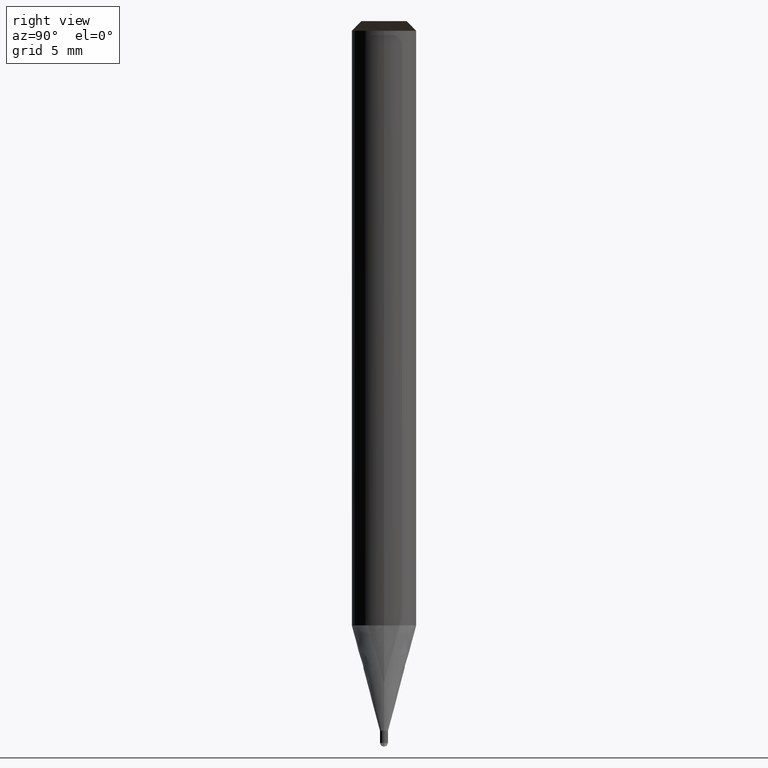
[diagram: clean part render]
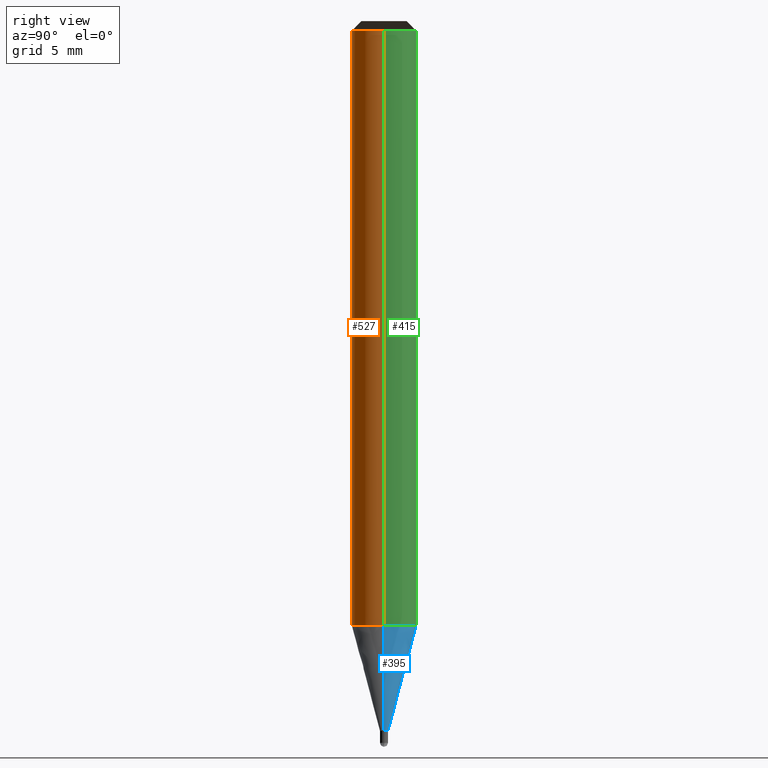
[diagram: same view with three faces highlighted in distinct colors, each labeled with its STEP entity id]
A machine part, right view with three faces highlighted in distinct colors.
Their STEP definitions:

[orange] entity #527 — the highlighted face is a freeform B-spline surface patch.
#199=CARTESIAN_POINT('',(2.0,0.0,-0.0));
#203=CARTESIAN_POINT('',(-2.0,0.0,-0.0));
#204=CARTESIAN_POINT('',(2.0,0.0,36.87));
#208=CARTESIAN_POINT('',(-2.0,0.0,36.87));
#218=CARTESIAN_POINT('',(-2.0,-2.0,-0.0));
#219=CARTESIAN_POINT('',(0.0,-2.0,-0.0));
#220=CARTESIAN_POINT('',(2.0,-2.0,-0.0));
#221=CARTESIAN_POINT('',(-2.0,-2.0,36.87));
#222=CARTESIAN_POINT('',(0.0,-2.0,36.87));
#223=CARTESIAN_POINT('',(2.0,-2.0,36.87));
#508=(
BOUNDED_SURFACE()
B_SPLINE_SURFACE(1,2,(
(#203,#218,#219,#220,#199),
(#208,#221,#222,#223,#204)
), .UNSPECIFIED.,.F.,.F.,.F.)
B_SPLINE_SURFACE_WITH_KNOTS((2,2),(3,2,3),(
0.0,1.0),(
0.0,0.5,1.0), .UNSPECIFIED.)
GEOMETRIC_REPRESENTATION_ITEM()
RATIONAL_B_SPLINE_SURFACE(((1.0,0.707106781187,1.0,0.707106781187,1.0),
(1.0,0.707106781187,1.0,0.707106781187,1.0)
))
REPRESENTATION_ITEM('')
SURFACE()
);
#509=(
BOUNDED_CURVE()
B_SPLINE_CURVE(1,(#208,#203),.UNSPECIFIED.,.F.,.F.)
B_SPLINE_CURVE_WITH_KNOTS((2,2),
(0.0,1.0),.UNSPECIFIED.)
CURVE()
GEOMETRIC_REPRESENTATION_ITEM()
RATIONAL_B_SPLINE_CURVE((1.0,1.0))
REPRESENTATION_ITEM('')
);
#510=(
BOUNDED_CURVE()
B_SPLINE_CURVE(2,(#203,#218,#219,#220,#199),.UNSPECIFIED.,.F.,.F.)
B_SPLINE_CURVE_WITH_KNOTS((3,2,3),
(0.0,0.5,1.0),.UNSPECIFIED.)
CURVE()
GEOMETRIC_REPRESENTATION_ITEM()
RATIONAL_B_SPLINE_CURVE((1.0,0.707106781187,1.0,0.707106781187,1.0))
REPRESENTATION_ITEM('')
);
#511=(
BOUNDED_CURVE()
B_SPLINE_CURVE(1,(#199,#204),.UNSPECIFIED.,.F.,.F.)
B_SPLINE_CURVE_WITH_KNOTS((2,2),
(0.0,1.0),.UNSPECIFIED.)
CURVE()
GEOMETRIC_REPRESENTATION_ITEM()
RATIONAL_B_SPLINE_CURVE((1.0,1.0))
REPRESENTATION_ITEM('')
);
#512=(
BOUNDED_CURVE()
B_SPLINE_CURVE(2,(#204,#223,#222,#221,#208),.UNSPECIFIED.,.F.,.F.)
B_SPLINE_CURVE_WITH_KNOTS((3,2,3),
(0.0,0.5,1.0),.UNSPECIFIED.)
CURVE()
GEOMETRIC_REPRESENTATION_ITEM()
RATIONAL_B_SPLINE_CURVE((1.0,0.707106781187,1.0,0.707106781187,1.0))
REPRESENTATION_ITEM('')
);
#513=VERTEX_POINT('',#199);
#514=VERTEX_POINT('',#203);
#515=VERTEX_POINT('',#204);
#516=VERTEX_POINT('',#208);
#517=EDGE_CURVE('',#516,#514,#509,.T.);
#518=EDGE_CURVE('',#514,#513,#510,.T.);
#519=EDGE_CURVE('',#513,#515,#511,.T.);
#520=EDGE_CURVE('',#515,#516,#512,.T.);
#521=ORIENTED_EDGE('',*,*,#517,.T.);
#522=ORIENTED_EDGE('',*,*,#518,.T.);
#523=ORIENTED_EDGE('',*,*,#519,.T.);
#524=ORIENTED_EDGE('',*,*,#520,.T.);
#525=EDGE_LOOP('',(#521,#522,#523,#524));
#526=FACE_OUTER_BOUND('',#525,.T.);
#527=ADVANCED_FACE('',(#526),#508,.T.);

[blue] entity #395 — the highlighted face is a freeform B-spline surface patch.
#194=CARTESIAN_POINT('',(0.25,0.0,-6.531088913246));
#195=CARTESIAN_POINT('',(0.25,0.25,-6.531088913246));
#196=CARTESIAN_POINT('',(0.0,0.25,-6.531088913246));
#197=CARTESIAN_POINT('',(-0.25,0.25,-6.531088913246));
#198=CARTESIAN_POINT('',(-0.25,0.0,-6.531088913246));
#199=CARTESIAN_POINT('',(2.0,0.0,-0.0));
#200=CARTESIAN_POINT('',(2.0,2.0,-0.0));
#201=CARTESIAN_POINT('',(0.0,2.0,-0.0));
#202=CARTESIAN_POINT('',(-2.0,2.0,-0.0));
#203=CARTESIAN_POINT('',(-2.0,0.0,-0.0));
#376=(
BOUNDED_SURFACE()
B_SPLINE_SURFACE(1,2,(
(#194,#195,#196,#197,#198),
(#199,#200,#201,#202,#203)
), .UNSPECIFIED.,.F.,.F.,.F.)
B_SPLINE_SURFACE_WITH_KNOTS((2,2),(3,2,3),(
0.0,1.0),(
0.0,0.5,1.0), .UNSPECIFIED.)
GEOMETRIC_REPRESENTATION_ITEM()
RATIONAL_B_SPLINE_SURFACE(((1.0,0.707106781187,1.0,0.707106781187,1.0),
(1.0,0.707106781187,1.0,0.707106781187,1.0)
))
REPRESENTATION_ITEM('')
SURFACE()
);
#377=(
BOUNDED_CURVE()
B_SPLINE_CURVE(2,(#199,#200,#201,#202,#203),.UNSPECIFIED.,.F.,.F.)
B_SPLINE_CURVE_WITH_KNOTS((3,2,3),
(0.0,0.5,1.0),.UNSPECIFIED.)
CURVE()
GEOMETRIC_REPRESENTATION_ITEM()
RATIONAL_B_SPLINE_CURVE((1.0,0.707106781187,1.0,0.707106781187,1.0))
REPRESENTATION_ITEM('')
);
#378=(
BOUNDED_CURVE()
B_SPLINE_CURVE(1,(#203,#198),.UNSPECIFIED.,.F.,.F.)
B_SPLINE_CURVE_WITH_KNOTS((2,2),
(0.0,1.0),.UNSPECIFIED.)
CURVE()
GEOMETRIC_REPRESENTATION_ITEM()
RATIONAL_B_SPLINE_CURVE((1.0,1.0))
REPRESENTATION_ITEM('')
);
#379=(
BOUNDED_CURVE()
B_SPLINE_CURVE(2,(#198,#197,#196,#195,#194),.UNSPECIFIED.,.F.,.F.)
B_SPLINE_CURVE_WITH_KNOTS((3,2,3),
(0.0,0.5,1.0),.UNSPECIFIED.)
CURVE()
GEOMETRIC_REPRESENTATION_ITEM()
RATIONAL_B_SPLINE_CURVE((1.0,0.707106781187,1.0,0.707106781187,1.0))
REPRESENTATION_ITEM('')
);
#380=(
BOUNDED_CURVE()
B_SPLINE_CURVE(1,(#194,#199),.UNSPECIFIED.,.F.,.F.)
B_SPLINE_CURVE_WITH_KNOTS((2,2),
(0.0,1.0),.UNSPECIFIED.)
CURVE()
GEOMETRIC_REPRESENTATION_ITEM()
RATIONAL_B_SPLINE_CURVE((1.0,1.0))
REPRESENTATION_ITEM('')
);
#381=VERTEX_POINT('',#194);
#382=VERTEX_POINT('',#198);
#383=VERTEX_POINT('',#199);
#384=VERTEX_POINT('',#203);
#385=EDGE_CURVE('',#383,#384,#377,.T.);
#386=EDGE_CURVE('',#384,#382,#378,.T.);
#387=EDGE_CURVE('',#382,#381,#379,.T.);
#388=EDGE_CURVE('',#381,#383,#380,.T.);
#389=ORIENTED_EDGE('',*,*,#385,.T.);
#390=ORIENTED_EDGE('',*,*,#386,.T.);
#391=ORIENTED_EDGE('',*,*,#387,.T.);
#392=ORIENTED_EDGE('',*,*,#388,.T.);
#393=EDGE_LOOP('',(#389,#390,#391,#392));
#394=FACE_OUTER_BOUND('',#393,.T.);
#395=ADVANCED_FACE('',(#394),#376,.T.);

[green] entity #415 — the highlighted face is a freeform B-spline surface patch.
#199=CARTESIAN_POINT('',(2.0,0.0,-0.0));
#200=CARTESIAN_POINT('',(2.0,2.0,-0.0));
#201=CARTESIAN_POINT('',(0.0,2.0,-0.0));
#202=CARTESIAN_POINT('',(-2.0,2.0,-0.0));
#203=CARTESIAN_POINT('',(-2.0,0.0,-0.0));
#204=CARTESIAN_POINT('',(2.0,0.0,36.87));
#205=CARTESIAN_POINT('',(2.0,2.0,36.87));
#206=CARTESIAN_POINT('',(0.0,2.0,36.87));
#207=CARTESIAN_POINT('',(-2.0,2.0,36.87));
#208=CARTESIAN_POINT('',(-2.0,0.0,36.87));
#396=(
BOUNDED_SURFACE()
B_SPLINE_SURFACE(1,2,(
(#199,#200,#201,#202,#203),
(#204,#205,#206,#207,#208)
), .UNSPECIFIED.,.F.,.F.,.F.)
B_SPLINE_SURFACE_WITH_KNOTS((2,2),(3,2,3),(
0.0,1.0),(
0.0,0.5,1.0), .UNSPECIFIED.)
GEOMETRIC_REPRESENTATION_ITEM()
RATIONAL_B_SPLINE_SURFACE(((1.0,0.707106781187,1.0,0.707106781187,1.0),
(1.0,0.707106781187,1.0,0.707106781187,1.0)
))
REPRESENTATION_ITEM('')
SURFACE()
);
#397=(
BOUNDED_CURVE()
B_SPLINE_CURVE(2,(#204,#205,#206,#207,#208),.UNSPECIFIED.,.F.,.F.)
B_SPLINE_CURVE_WITH_KNOTS((3,2,3),
(0.0,0.5,1.0),.UNSPECIFIED.)
CURVE()
GEOMETRIC_REPRESENTATION_ITEM()
RATIONAL_B_SPLINE_CURVE((1.0,0.707106781187,1.0,0.707106781187,1.0))
REPRESENTATION_ITEM('')
);
#398=(
BOUNDED_CURVE()
B_SPLINE_CURVE(1,(#208,#203),.UNSPECIFIED.,.F.,.F.)
B_SPLINE_CURVE_WITH_KNOTS((2,2),
(0.0,1.0),.UNSPECIFIED.)
CURVE()
GEOMETRIC_REPRESENTATION_ITEM()
RATIONAL_B_SPLINE_CURVE((1.0,1.0))
REPRESENTATION_ITEM('')
);
#399=(
BOUNDED_CURVE()
B_SPLINE_CURVE(2,(#203,#202,#201,#200,#199),.UNSPECIFIED.,.F.,.F.)
B_SPLINE_CURVE_WITH_KNOTS((3,2,3),
(0.0,0.5,1.0),.UNSPECIFIED.)
CURVE()
GEOMETRIC_REPRESENTATION_ITEM()
RATIONAL_B_SPLINE_CURVE((1.0,0.707106781187,1.0,0.707106781187,1.0))
REPRESENTATION_ITEM('')
);
#400=(
BOUNDED_CURVE()
B_SPLINE_CURVE(1,(#199,#204),.UNSPECIFIED.,.F.,.F.)
B_SPLINE_CURVE_WITH_KNOTS((2,2),
(0.0,1.0),.UNSPECIFIED.)
CURVE()
GEOMETRIC_REPRESENTATION_ITEM()
RATIONAL_B_SPLINE_CURVE((1.0,1.0))
REPRESENTATION_ITEM('')
);
#401=VERTEX_POINT('',#199);
#402=VERTEX_POINT('',#203);
#403=VERTEX_POINT('',#204);
#404=VERTEX_POINT('',#208);
#405=EDGE_CURVE('',#403,#404,#397,.T.);
#406=EDGE_CURVE('',#404,#402,#398,.T.);
#407=EDGE_CURVE('',#402,#401,#399,.T.);
#408=EDGE_CURVE('',#401,#403,#400,.T.);
#409=ORIENTED_EDGE('',*,*,#405,.T.);
#410=ORIENTED_EDGE('',*,*,#406,.T.);
#411=ORIENTED_EDGE('',*,*,#407,.T.);
#412=ORIENTED_EDGE('',*,*,#408,.T.);
#413=EDGE_LOOP('',(#409,#410,#411,#412));
#414=FACE_OUTER_BOUND('',#413,.T.);
#415=ADVANCED_FACE('',(#414),#396,.T.);